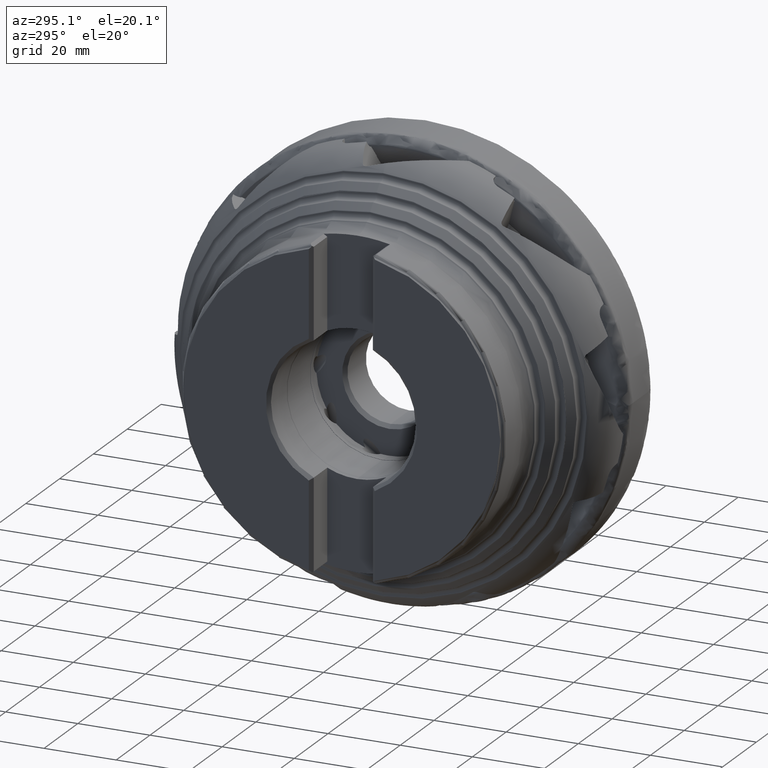
[diagram: clean part render]
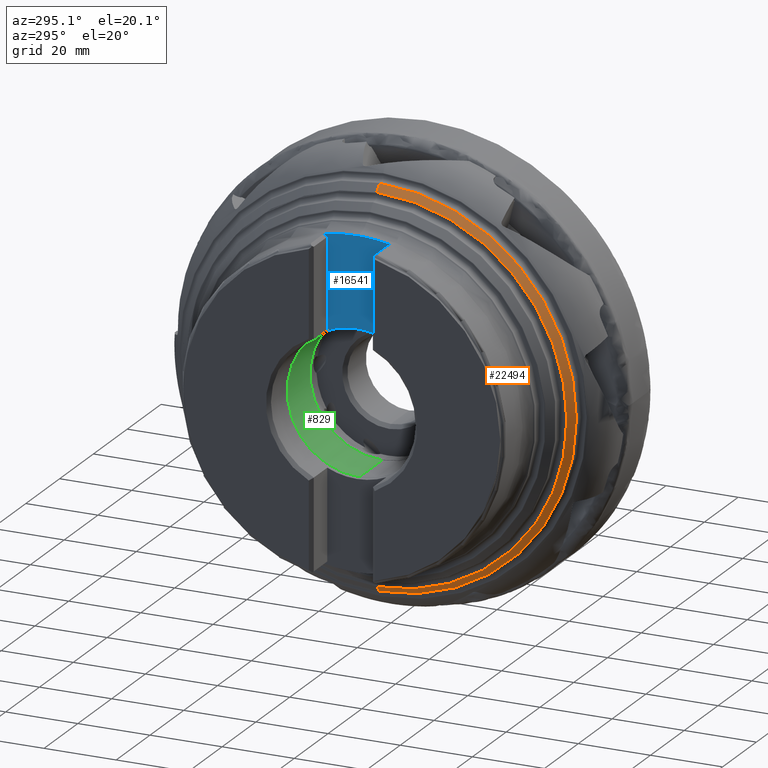
[diagram: same view with three faces highlighted in distinct colors, each labeled with its STEP entity id]
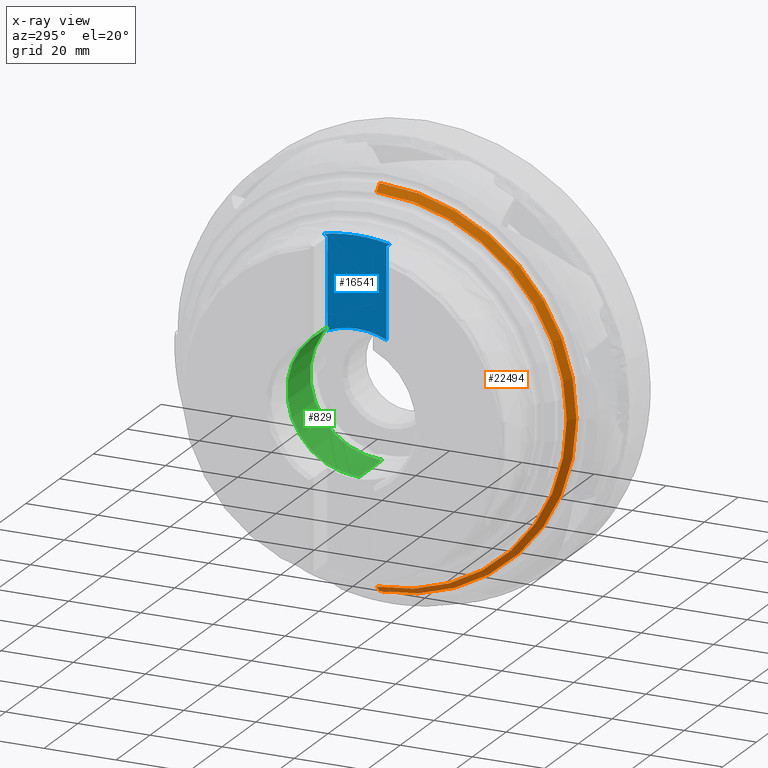
[diagram: x-ray of the same camera — body ghosted, the three highlighted faces saturated]
A machine part, auxiliary view with three faces highlighted in distinct colors.
The next image is the same camera in x-ray (body ghosted, the three faces saturated) — at least one of them is partly hidden behind the body in this view.
Their STEP definitions:

[orange] entity #22494 — the highlighted conical surface has half-angle 45.572 deg.
#960 = ORIENTED_EDGE ( 'NONE', *, *, #11332, .F. ) ;
#1206 = EDGE_CURVE ( 'NONE', #8832, #22545, #25590, .T. ) ;
#1786 = DIRECTION ( 'NONE',  ( 0.7000164151652528100, 8.745530415171429200E-017, 0.7141267524040732000 ) ) ;
#3419 = VECTOR ( 'NONE', #1786, 1000.000000000000100 ) ;
#3485 = VERTEX_POINT ( 'NONE', #9711 ) ;
#4218 = AXIS2_PLACEMENT_3D ( 'NONE', #23572, #13534, #25491 ) ;
#5625 = EDGE_CURVE ( 'NONE', #3485, #8832, #13271, .T. ) ;
#6634 = CARTESIAN_POINT ( 'NONE',  ( -28.59105781361489900, 0.0000000000000000000, -52.71094930648718700 ) ) ;
#7046 = CIRCLE ( 'NONE', #25272, 54.55051246716693200 ) ;
#7463 = VECTOR ( 'NONE', #20439, 1000.000000000000100 ) ;
#8125 = CARTESIAN_POINT ( 'NONE',  ( -26.78784234118786900, 0.0000000000000000000, 0.0000000000000000000 ) ) ;
#8703 = LINE ( 'NONE', #15674, #3419 ) ;
#8832 = VERTEX_POINT ( 'NONE', #6634 ) ;
#9711 = CARTESIAN_POINT ( 'NONE',  ( -28.59105781361489900, 6.567870291648585100E-015, 52.71094930648718700 ) ) ;
#10314 = CARTESIAN_POINT ( 'NONE',  ( -26.78784234118786900, 0.0000000000000000000, -54.55051246716693200 ) ) ;
#11332 = EDGE_CURVE ( 'NONE', #3485, #25613, #8703, .T. ) ;
#11912 = DIRECTION ( 'NONE',  ( 1.000000000000000000, -0.0000000000000000000, -0.0000000000000000000 ) ) ;
#12752 = FACE_OUTER_BOUND ( 'NONE', #24871, .T. ) ;
#13022 = ORIENTED_EDGE ( 'NONE', *, *, #5625, .T. ) ;
#13212 = ORIENTED_EDGE ( 'NONE', *, *, #15148, .T. ) ;
#13271 = CIRCLE ( 'NONE', #4218, 52.71094930648718700 ) ;
#13534 = DIRECTION ( 'NONE',  ( 1.000000000000000000, 0.0000000000000000000, 0.0000000000000000000 ) ) ;
#13633 = CARTESIAN_POINT ( 'NONE',  ( -26.78784234118786900, 6.680511048476377500E-015, 54.55051246716693200 ) ) ;
#14493 = CARTESIAN_POINT ( 'NONE',  ( -24.39326998438824000, 0.0000000000000000000, -56.99335258278651400 ) ) ;
#15113 = CARTESIAN_POINT ( 'NONE',  ( -24.39326998438824000, 0.0000000000000000000, 0.0000000000000000000 ) ) ;
#15148 = EDGE_CURVE ( 'NONE', #22545, #25613, #7046, .T. ) ;
#15674 = CARTESIAN_POINT ( 'NONE',  ( -24.39326998438824000, 6.979672681318604300E-015, 56.99335258278651400 ) ) ;
#18458 = DIRECTION ( 'NONE',  ( 0.0000000000000000000, 0.0000000000000000000, -1.000000000000000000 ) ) ;
#18537 = DIRECTION ( 'NONE',  ( -1.000000000000000000, -0.0000000000000000000, -0.0000000000000000000 ) ) ;
#20439 = DIRECTION ( 'NONE',  ( 0.7000164151652528100, 0.0000000000000000000, -0.7141267524040732000 ) ) ;
#20892 = CONICAL_SURFACE ( 'NONE', #25808, 56.99335258278651400, 0.7953758440962137600 ) ;
#22279 = DIRECTION ( 'NONE',  ( 0.0000000000000000000, 0.0000000000000000000, 1.000000000000000000 ) ) ;
#22494 = ADVANCED_FACE ( 'NONE', ( #12752 ), #20892, .T. ) ;
#22545 = VERTEX_POINT ( 'NONE', #10314 ) ;
#22697 = ORIENTED_EDGE ( 'NONE', *, *, #1206, .T. ) ;
#23572 = CARTESIAN_POINT ( 'NONE',  ( -28.59105781361489900, 0.0000000000000000000, 0.0000000000000000000 ) ) ;
#24871 = EDGE_LOOP ( 'NONE', ( #960, #13022, #22697, #13212 ) ) ;
#25272 = AXIS2_PLACEMENT_3D ( 'NONE', #8125, #18537, #22279 ) ;
#25491 = DIRECTION ( 'NONE',  ( 0.0000000000000000000, 0.0000000000000000000, 1.000000000000000000 ) ) ;
#25590 = LINE ( 'NONE', #14493, #7463 ) ;
#25613 = VERTEX_POINT ( 'NONE', #13633 ) ;
#25808 = AXIS2_PLACEMENT_3D ( 'NONE', #15113, #11912, #18458 ) ;

[blue] entity #16541 — the highlighted planar face has unit normal (1, 0, 0).
#825 = VECTOR ( 'NONE', #11308, 1000.000000000000100 ) ;
#1142 = DIRECTION ( 'NONE',  ( -1.000000000000000000, -0.0000000000000000000, -0.0000000000000000000 ) ) ;
#1582 = DIRECTION ( 'NONE',  ( -0.0000000000000000000, -0.8241185251771416800, 0.5664173871447212300 ) ) ;
#2559 = ORIENTED_EDGE ( 'NONE', *, *, #24642, .T. ) ;
#3306 = CARTESIAN_POINT ( 'NONE',  ( -40.25000000000000000, -8.200000000000006400, 43.38856590938613100 ) ) ;
#4508 = EDGE_CURVE ( 'NONE', #11302, #12287, #25486, .T. ) ;
#4532 = CARTESIAN_POINT ( 'NONE',  ( -40.25000000000000000, -9.170586121755665200, 44.05565060447368400 ) ) ;
#4828 = EDGE_CURVE ( 'NONE', #5172, #14438, #21119, .T. ) ;
#4998 = CARTESIAN_POINT ( 'NONE',  ( -40.25000000000000000, -8.200000000000020600, 18.32390856231277400 ) ) ;
#5172 = VERTEX_POINT ( 'NONE', #3306 ) ;
#5325 = ORIENTED_EDGE ( 'NONE', *, *, #4508, .F. ) ;
#5449 = FACE_OUTER_BOUND ( 'NONE', #13832, .T. ) ;
#5998 = ORIENTED_EDGE ( 'NONE', *, *, #23193, .F. ) ;
#6893 = AXIS2_PLACEMENT_3D ( 'NONE', #12458, #1142, #22511 ) ;
#7294 = CARTESIAN_POINT ( 'NONE',  ( -40.25000000000000000, 8.199999999999995700, 43.38856590938614500 ) ) ;
#7544 = VERTEX_POINT ( 'NONE', #25037 ) ;
#7823 = CIRCLE ( 'NONE', #18513, 45.00000000000000000 ) ;
#8952 = LINE ( 'NONE', #21272, #825 ) ;
#9686 = ORIENTED_EDGE ( 'NONE', *, *, #4828, .T. ) ;
#9730 = EDGE_CURVE ( 'NONE', #14438, #10759, #7823, .T. ) ;
#9815 = DIRECTION ( 'NONE',  ( 0.0000000000000000000, 3.552713678800500100E-015, -1.000000000000000000 ) ) ;
#10711 = VERTEX_POINT ( 'NONE', #25762 ) ;
#10759 = VERTEX_POINT ( 'NONE', #22019 ) ;
#11302 = VERTEX_POINT ( 'NONE', #20033 ) ;
#11308 = DIRECTION ( 'NONE',  ( 0.0000000000000000000, -0.8241185251771546700, -0.5664173871447022400 ) ) ;
#11574 = VERTEX_POINT ( 'NONE', #4998 ) ;
#11806 = CIRCLE ( 'NONE', #6893, 20.07499999999999600 ) ;
#12287 = VERTEX_POINT ( 'NONE', #7294 ) ;
#12458 = CARTESIAN_POINT ( 'NONE',  ( -40.25000000000000000, 0.0000000000000000000, 0.0000000000000000000 ) ) ;
#12755 = CARTESIAN_POINT ( 'NONE',  ( -40.25000000000000000, -8.200000000000006400, -49.99999999999999300 ) ) ;
#12844 = CARTESIAN_POINT ( 'NONE',  ( -40.25000000000000000, 8.199999999999995700, -49.99999999999999300 ) ) ;
#12944 = PLANE ( 'NONE',  #21796 ) ;
#12978 = EDGE_CURVE ( 'NONE', #10759, #10711, #16186, .T. ) ;
#13317 = VECTOR ( 'NONE', #18080, 1000.000000000000000 ) ;
#13832 = EDGE_LOOP ( 'NONE', ( #16960, #23009, #2559, #5325, #5998, #18190, #15047, #9686 ) ) ;
#13841 = DIRECTION ( 'NONE',  ( -1.000000000000000000, -0.0000000000000000000, -0.0000000000000000000 ) ) ;
#13852 = CARTESIAN_POINT ( 'NONE',  ( -40.25000000000000000, 0.0000000000000000000, 0.0000000000000000000 ) ) ;
#13914 = EDGE_CURVE ( 'NONE', #11574, #5172, #17077, .T. ) ;
#14361 = AXIS2_PLACEMENT_3D ( 'NONE', #25793, #13841, #24128 ) ;
#14438 = VERTEX_POINT ( 'NONE', #4532 ) ;
#14762 = CIRCLE ( 'NONE', #17573, 20.07499999999999600 ) ;
#15047 = ORIENTED_EDGE ( 'NONE', *, *, #13914, .T. ) ;
#16186 = CIRCLE ( 'NONE', #14361, 45.00000000000000000 ) ;
#16541 = ADVANCED_FACE ( 'NONE', ( #5449 ), #12944, .F. ) ;
#16960 = ORIENTED_EDGE ( 'NONE', *, *, #9730, .T. ) ;
#17077 = LINE ( 'NONE', #12755, #18969 ) ;
#17224 = DIRECTION ( 'NONE',  ( 0.0000000000000000000, 0.0000000000000000000, -1.000000000000000000 ) ) ;
#17396 = DIRECTION ( 'NONE',  ( -1.000000000000000000, -0.0000000000000000000, -0.0000000000000000000 ) ) ;
#17573 = AXIS2_PLACEMENT_3D ( 'NONE', #13852, #25626, #9815 ) ;
#18080 = DIRECTION ( 'NONE',  ( -0.0000000000000000000, -0.0000000000000000000, 1.000000000000000000 ) ) ;
#18190 = ORIENTED_EDGE ( 'NONE', *, *, #18883, .F. ) ;
#18513 = AXIS2_PLACEMENT_3D ( 'NONE', #25055, #17396, #21316 ) ;
#18883 = EDGE_CURVE ( 'NONE', #11574, #7544, #14762, .T. ) ;
#18969 = VECTOR ( 'NONE', #22802, 1000.000000000000000 ) ;
#19660 = CARTESIAN_POINT ( 'NONE',  ( -40.25000000000000000, 46.53173142245685100, 5.771398767619652800 ) ) ;
#20033 = CARTESIAN_POINT ( 'NONE',  ( -40.25000000000000000, 8.199999999999992200, 18.32390856231278800 ) ) ;
#21119 = LINE ( 'NONE', #19660, #24229 ) ;
#21272 = CARTESIAN_POINT ( 'NONE',  ( -40.25000000000000000, -35.39332138839768000, 13.42683777996738600 ) ) ;
#21316 = DIRECTION ( 'NONE',  ( 0.0000000000000000000, 7.105427357601001100E-015, -1.000000000000000000 ) ) ;
#21796 = AXIS2_PLACEMENT_3D ( 'NONE', #12844, #25168, #17224 ) ;
#22019 = CARTESIAN_POINT ( 'NONE',  ( -40.25000000000000000, 5.510910596163089600E-015, 45.00000000000000000 ) ) ;
#22024 = CARTESIAN_POINT ( 'NONE',  ( -40.25000000000000000, 8.199999999999995700, -49.99999999999999300 ) ) ;
#22511 = DIRECTION ( 'NONE',  ( 0.0000000000000000000, 0.0000000000000000000, -1.000000000000000000 ) ) ;
#22802 = DIRECTION ( 'NONE',  ( -0.0000000000000000000, -0.0000000000000000000, 1.000000000000000000 ) ) ;
#23009 = ORIENTED_EDGE ( 'NONE', *, *, #12978, .T. ) ;
#23193 = EDGE_CURVE ( 'NONE', #7544, #11302, #11806, .T. ) ;
#24128 = DIRECTION ( 'NONE',  ( 0.0000000000000000000, 0.0000000000000000000, -1.000000000000000000 ) ) ;
#24229 = VECTOR ( 'NONE', #1582, 999.9999999999998900 ) ;
#24642 = EDGE_CURVE ( 'NONE', #10711, #12287, #8952, .T. ) ;
#25037 = CARTESIAN_POINT ( 'NONE',  ( -40.25000000000000000, 2.458478449288310900E-015, 20.07499999999999600 ) ) ;
#25055 = CARTESIAN_POINT ( 'NONE',  ( -40.25000000000000000, 0.0000000000000000000, 0.0000000000000000000 ) ) ;
#25168 = DIRECTION ( 'NONE',  ( 1.000000000000000000, 0.0000000000000000000, 0.0000000000000000000 ) ) ;
#25486 = LINE ( 'NONE', #22024, #13317 ) ;
#25626 = DIRECTION ( 'NONE',  ( -1.000000000000000000, -0.0000000000000000000, -0.0000000000000000000 ) ) ;
#25762 = CARTESIAN_POINT ( 'NONE',  ( -40.25000000000000000, 9.170586121755675900, 44.05565060447368400 ) ) ;
#25793 = CARTESIAN_POINT ( 'NONE',  ( -40.25000000000000000, 0.0000000000000000000, 0.0000000000000000000 ) ) ;

[green] entity #829 — the highlighted cylindrical surface (partial cylindrical patch) has radius 20 mm, axis along (-1, -0, -0).
#829 = ADVANCED_FACE ( 'NONE', ( #19705 ), #2504, .F. ) ;
#2154 = DIRECTION ( 'NONE',  ( 0.0000000000000000000, 0.0000000000000000000, 1.000000000000000000 ) ) ;
#2215 = CARTESIAN_POINT ( 'NONE',  ( -25.25000000000000000, 2.449293598294706500E-015, -20.00000000000000000 ) ) ;
#2328 = CARTESIAN_POINT ( 'NONE',  ( -38.80000000000001100, 2.453886023791508500E-015, -20.00000000000000000 ) ) ;
#2504 = CYLINDRICAL_SURFACE ( 'NONE', #11295, 20.00000000000000000 ) ;
#3210 = ORIENTED_EDGE ( 'NONE', *, *, #12002, .F. ) ;
#3480 = AXIS2_PLACEMENT_3D ( 'NONE', #16322, #12107, #2154 ) ;
#4081 = VERTEX_POINT ( 'NONE', #2328 ) ;
#4179 = LINE ( 'NONE', #16680, #12915 ) ;
#5002 = DIRECTION ( 'NONE',  ( 0.0000000000000000000, 0.0000000000000000000, 1.000000000000000000 ) ) ;
#5043 = EDGE_LOOP ( 'NONE', ( #23482, #3210, #12896, #24266 ) ) ;
#5290 = CARTESIAN_POINT ( 'NONE',  ( -38.80000000000001100, 0.0000000000000000000, 20.00000000000000000 ) ) ;
#6156 = VECTOR ( 'NONE', #15592, 1000.000000000000000 ) ;
#7538 = CARTESIAN_POINT ( 'NONE',  ( -25.25000000000000000, 2.449293598294706500E-015, -20.00000000000000000 ) ) ;
#7552 = CARTESIAN_POINT ( 'NONE',  ( -38.80000000000001100, 0.0000000000000000000, 0.0000000000000000000 ) ) ;
#9203 = DIRECTION ( 'NONE',  ( -1.000000000000000000, -0.0000000000000000000, -0.0000000000000000000 ) ) ;
#9713 = CARTESIAN_POINT ( 'NONE',  ( -25.25000000000000000, 0.0000000000000000000, 20.00000000000000000 ) ) ;
#10706 = CIRCLE ( 'NONE', #18397, 20.00000000000000000 ) ;
#11295 = AXIS2_PLACEMENT_3D ( 'NONE', #16981, #9203, #5002 ) ;
#12002 = EDGE_CURVE ( 'NONE', #16315, #22059, #25870, .T. ) ;
#12107 = DIRECTION ( 'NONE',  ( -1.000000000000000000, 0.0000000000000000000, 0.0000000000000000000 ) ) ;
#12896 = ORIENTED_EDGE ( 'NONE', *, *, #16994, .T. ) ;
#12915 = VECTOR ( 'NONE', #22864, 1000.000000000000000 ) ;
#13340 = DIRECTION ( 'NONE',  ( 1.000000000000000000, -0.0000000000000000000, -0.0000000000000000000 ) ) ;
#15592 = DIRECTION ( 'NONE',  ( -1.000000000000000000, -0.0000000000000000000, -0.0000000000000000000 ) ) ;
#16315 = VERTEX_POINT ( 'NONE', #9713 ) ;
#16322 = CARTESIAN_POINT ( 'NONE',  ( -25.25000000000000000, 0.0000000000000000000, 0.0000000000000000000 ) ) ;
#16680 = CARTESIAN_POINT ( 'NONE',  ( -25.25000000000000000, 0.0000000000000000000, 20.00000000000000000 ) ) ;
#16981 = CARTESIAN_POINT ( 'NONE',  ( -25.25000000000000000, 0.0000000000000000000, 0.0000000000000000000 ) ) ;
#16994 = EDGE_CURVE ( 'NONE', #16315, #20281, #4179, .T. ) ;
#18397 = AXIS2_PLACEMENT_3D ( 'NONE', #7552, #13340, #25214 ) ;
#18748 = EDGE_CURVE ( 'NONE', #4081, #20281, #10706, .T. ) ;
#19299 = LINE ( 'NONE', #7538, #6156 ) ;
#19705 = FACE_OUTER_BOUND ( 'NONE', #5043, .T. ) ;
#20281 = VERTEX_POINT ( 'NONE', #5290 ) ;
#22059 = VERTEX_POINT ( 'NONE', #2215 ) ;
#22864 = DIRECTION ( 'NONE',  ( -1.000000000000000000, -0.0000000000000000000, -0.0000000000000000000 ) ) ;
#23482 = ORIENTED_EDGE ( 'NONE', *, *, #23844, .F. ) ;
#23844 = EDGE_CURVE ( 'NONE', #22059, #4081, #19299, .T. ) ;
#24266 = ORIENTED_EDGE ( 'NONE', *, *, #18748, .F. ) ;
#25214 = DIRECTION ( 'NONE',  ( 0.0000000000000000000, 0.0000000000000000000, 1.000000000000000000 ) ) ;
#25870 = CIRCLE ( 'NONE', #3480, 20.00000000000000000 ) ;